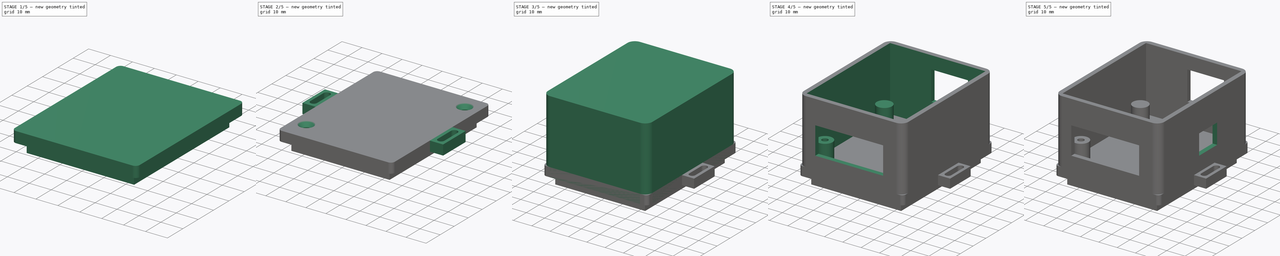
[diagram: build sequence overview — one tinted view per stage of 5, left to right]
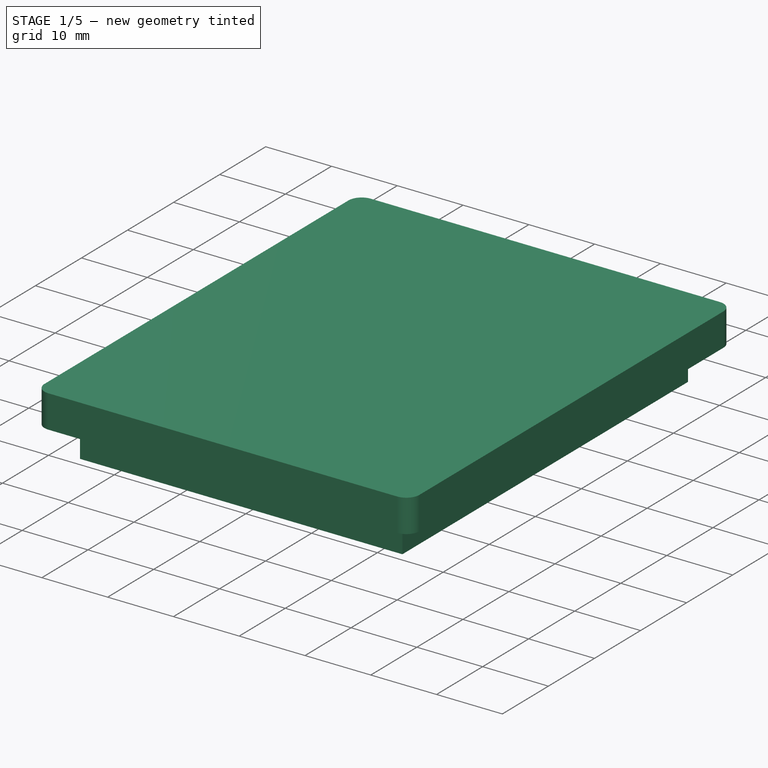
[diagram: stage 1 of 5 — iso view after this stage's code; geometry added in this stage tinted green]
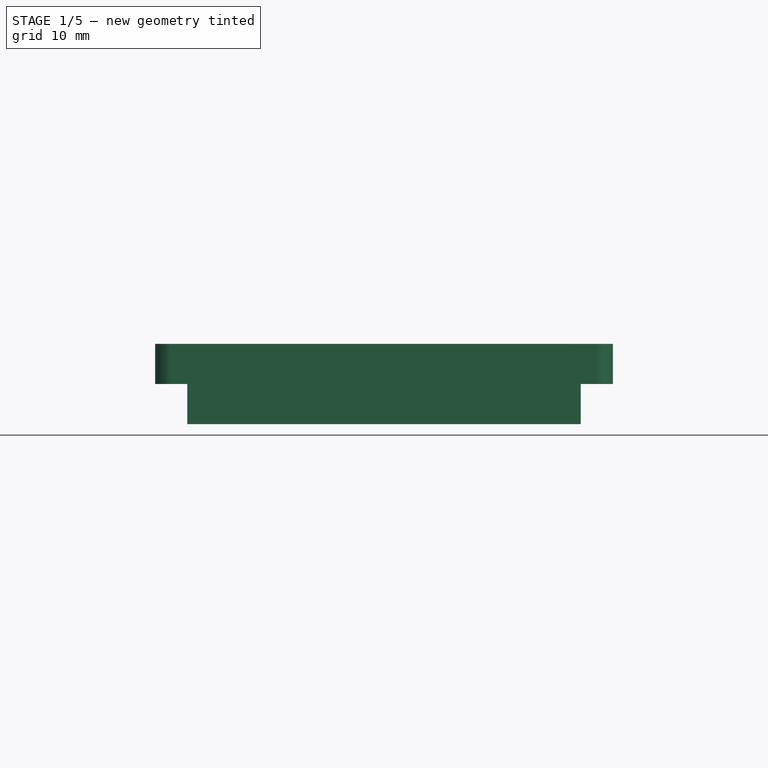
[diagram: stage 1 of 5 — front view after this stage's code; geometry added in this stage tinted green]
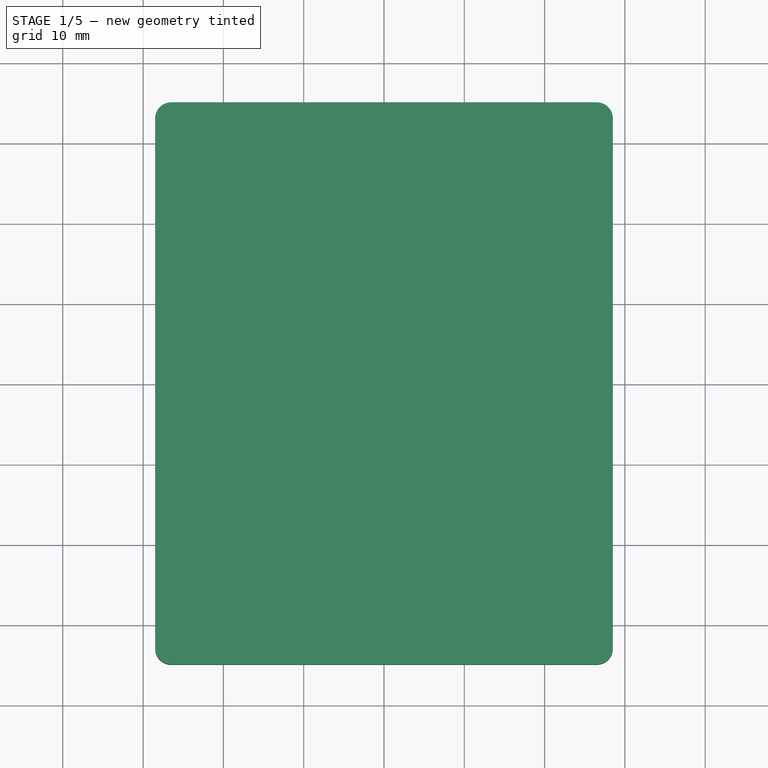
[diagram: stage 1 of 5 — top view after this stage's code; geometry added in this stage tinted green]
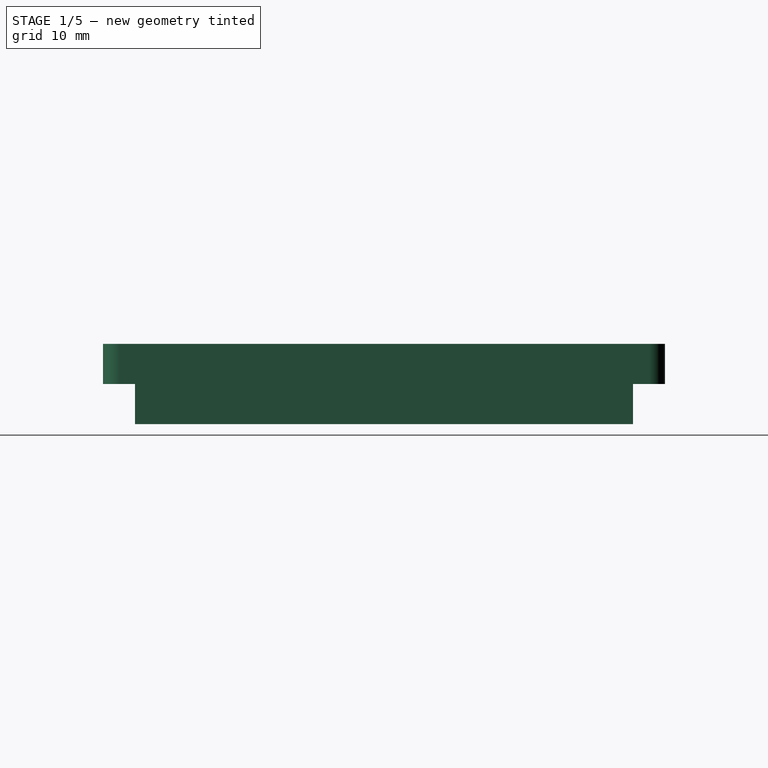
[diagram: stage 1 of 5 — right view after this stage's code; geometry added in this stage tinted green]
FCSTD DOCUMENT  (FreeCAD 0.19R24291 (Git))
Label: Carcasa
License: All rights reserved
LicenseURL: http://en.wikipedia.org/wiki/All_rights_reserved
objects: Sketcher::SketchObject×11, PartDesign::Pocket×7, PartDesign::Pad×5, PartDesign::Chamfer×3, PartDesign::Fillet×2, PartDesign::Body×2, Spreadsheet::Sheet×1, App::Part×1
note: 47 computed .brp shape members not serialized (recipe doc carries the construction recipe); baked Part::Feature solids carry a one-line shape summary decoded from their .brp

FEATURE [Sketcher::SketchObject] Sketch003  label="Base de la tapa"
  FullyConstrained = true
  MapMode = 5
  Support = -> [XY_Plane002]
  expr: Constraints[7] = Spreadsheet.caja_largo_exterior
  expr: Constraints[6] = Spreadsheet.caja_ancho_exterior
  sketch-geometry (4):
    g0: LineSegment StartX=-28.5 StartY=35 StartZ=0 EndX=28.5 EndY=35 EndZ=0
    g1: LineSegment StartX=28.5 StartY=35 StartZ=0 EndX=28.5 EndY=-35 EndZ=0
    g2: LineSegment StartX=28.5 StartY=-35 StartZ=0 EndX=-28.5 EndY=-35 EndZ=0
    g3: LineSegment StartX=-28.5 StartY=-35 StartZ=0 EndX=-28.5 EndY=35 EndZ=0
  constraints (10):
    c: Coincident(g0,g1)
    c: Coincident(g1,g2)
    c: Coincident(g2,g3)
    c: Coincident(g3,g0)
    c: Horizontal(g2)
    c: Vertical(g1)
    c: DistanceX(g0,g0) = 57
    c: DistanceY(g1,g1) = 70
    c: Symmetric(g0,g0,g-2)
    c: Symmetric(g0,g2,g-1)
FEATURE [PartDesign::Pad] Pad002
  Direction = (1,1,1)
  Length = 5
  Length2 = 100
  Profile = -> Sketch003
  Type = 0
  expr: Length = Spreadsheet.tapa_alto
FEATURE [PartDesign::Fillet] Fillet001
  Base = -> Pad002 [Edge2,Edge5,Edge8,Edge1]
  BaseFeature = -> Pad002
  Radius = 2
  SupportTransform = false
  expr: Radius = Spreadsheet.caja_redondeado_externo / 2
FEATURE [Sketcher::SketchObject] Sketch005
  FullyConstrained = true
  MapMode = 5
  Support = -> [XY_Plane002]
  expr: Constraints[8] = Spreadsheet.caja_ancho_interior - 3
  expr: Constraints[9] = Spreadsheet.caja_largo_interior - 3
  sketch-geometry (4):
    g0: LineSegment StartX=-24.5 StartY=31 StartZ=0 EndX=24.5 EndY=31 EndZ=0
    g1: LineSegment StartX=24.5 StartY=31 StartZ=0 EndX=24.5 EndY=-31 EndZ=0
    g2: LineSegment StartX=24.5 StartY=-31 StartZ=0 EndX=-24.5 EndY=-31 EndZ=0
    g3: LineSegment StartX=-24.5 StartY=-31 StartZ=0 EndX=-24.5 EndY=31 EndZ=0
  constraints (10):
    c: Coincident(g0,g1)
    c: Coincident(g1,g2)
    c: Coincident(g2,g3)
    c: Coincident(g3,g0)
    c: Horizontal(g2)
    c: Vertical(g3)
    c: Symmetric(g0,g0,g-2)
    c: Symmetric(g1,g0,g-1)
    c: DistanceX(g0,g0) = 49
    c: DistanceY(g1,g1) = 62
FEATURE [PartDesign::Pad] Pad004  label="Base de la tapa interna"
  BaseFeature = -> Fillet001
  Direction = (1,1,1)
  Length = 5
  Length2 = 100
  Profile = -> Sketch005
  Reversed = true
  Type = 0
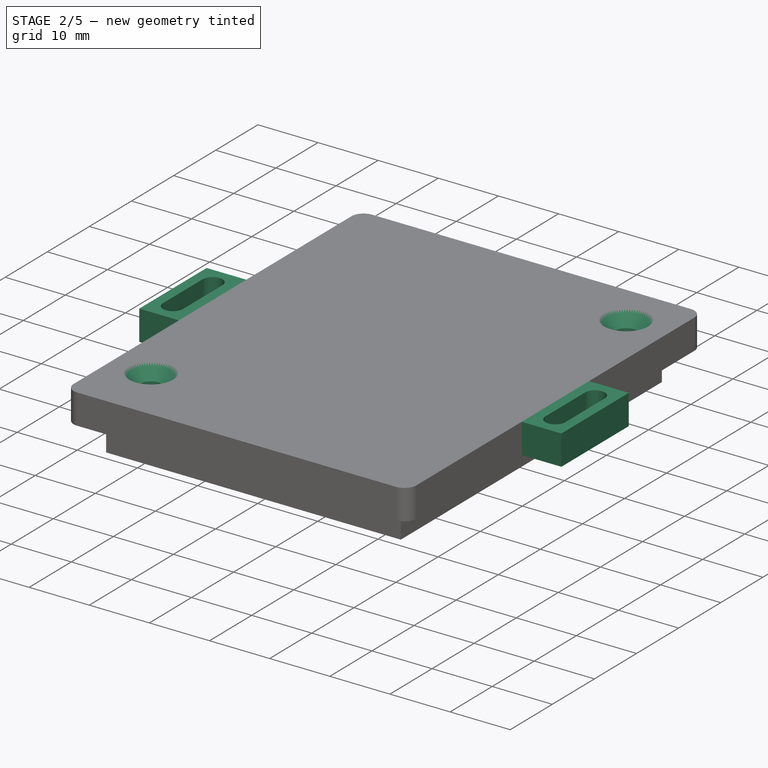
[diagram: stage 2 of 5 — iso view after this stage's code; geometry added in this stage tinted green]
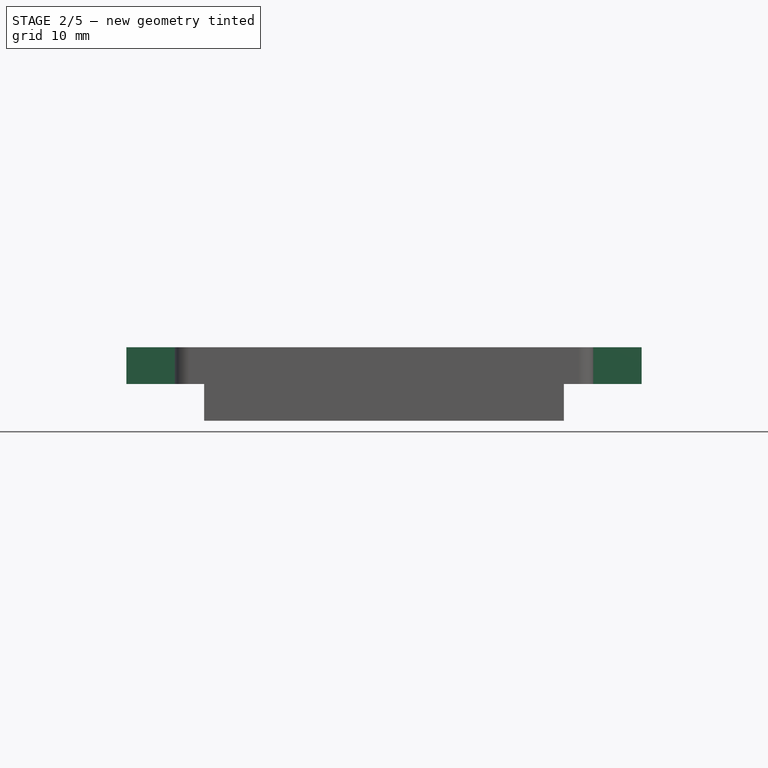
[diagram: stage 2 of 5 — front view after this stage's code; geometry added in this stage tinted green]
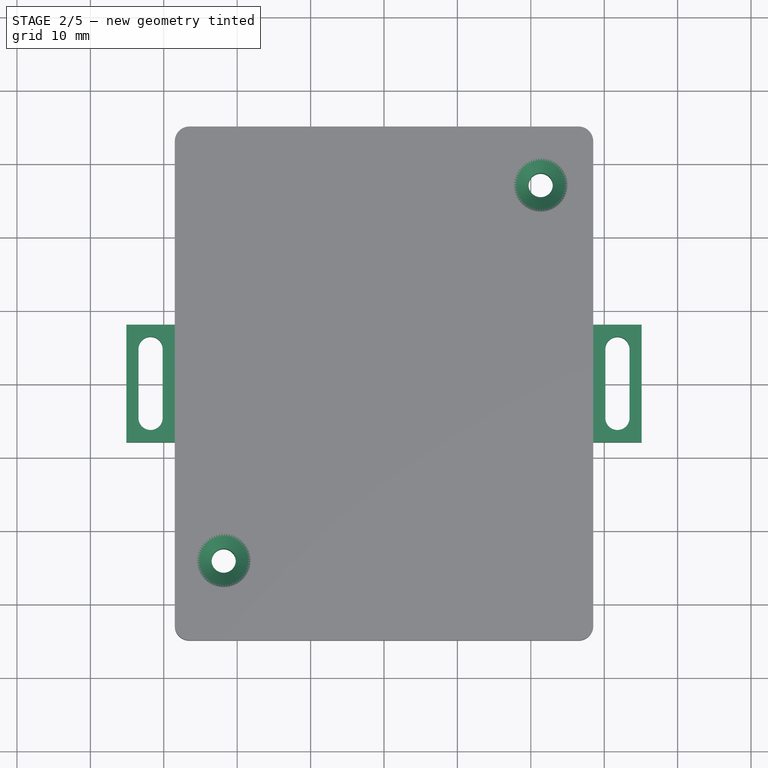
[diagram: stage 2 of 5 — top view after this stage's code; geometry added in this stage tinted green]
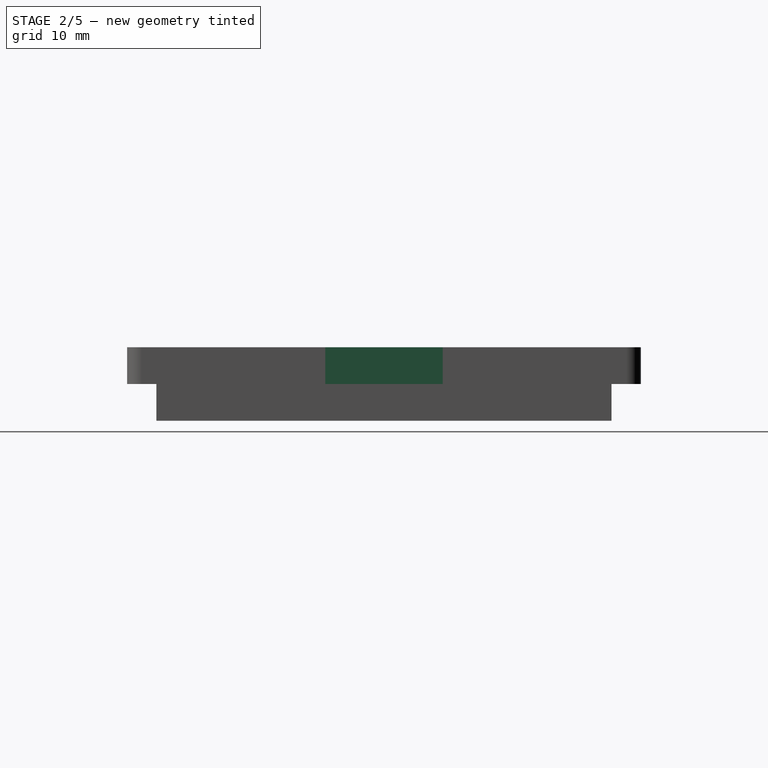
[diagram: stage 2 of 5 — right view after this stage's code; geometry added in this stage tinted green]
FEATURE [Sketcher::SketchObject] Sketch006
  AttachmentOffset = pos=(0,0,5) rot=(0,0,1;0rad)
  FullyConstrained = true
  MapMode = 5
  Placement = pos=(0,0,5) rot=(0,0,1;0rad)
  Support = -> [XY_Plane002]
  expr: Constraints[1] = Spreadsheet.caja_tornillo_radio
  expr: Constraints[2] = Spreadsheet.placa_ancho / 2 - 3.56
  expr: Constraints[5] = Spreadsheet.placa_largo / 2 - 4.06
  expr: Constraints[4] = Spreadsheet.placa_ancho / 2 - 4.06
  expr: Constraints[3] = Spreadsheet.placa_largo / 2 - 7
  sketch-geometry (2):
    g0: Circle CenterX=21.34 CenterY=27.055 CenterZ=0 NormalX=0 NormalY=0 NormalZ=1 AngleXU=0 Radius=1.65
    g1: Circle CenterX=-21.84 CenterY=-24.115 CenterZ=0 NormalX=0 NormalY=0 NormalZ=1 AngleXU=0 Radius=1.65
  constraints (6):
    c: Equal(g0,g1)
    c: Radius(g0) = 1.65
    c: DistanceX(g1,g-1) = 21.84
    c: DistanceY(g1,g-1) = 24.115
    c: DistanceX(g-1,g0) = 21.34
    c: DistanceY(g-1,g0) = 27.055
FEATURE [PartDesign::Pocket] Pocket001  label="Tornillos001"
  BaseFeature = -> Pad004
  Length = 5
  Length2 = 100
  Profile = -> Sketch006
  Type = 1
FEATURE [PartDesign::Chamfer] Chamfer
  Angle = 45
  Base = -> Pocket001 [Edge25,Edge26]
  BaseFeature = -> Pocket001
  ChamferType = 0
  FlipDirection = false
  Size = 2
  Size2 = 1
  SupportTransform = false
FEATURE [PartDesign::Body] Body  label="Base de la Carcasa"
  Group = -> [Sketch,Pad,Fillet,Sketch001,Pocket,Sketch004,Pad003,Sketch007,Pocket002,Sketch008,Pocket003,Sketch009,Pocket004,Pocket005,Sketch010,Pocket006]
  Origin = -> Origin
  Tip = -> Pocket006
FEATURE [Sketcher::SketchObject] Sketch011
  FullyConstrained = true
  MapMode = 5
  Support = -> [XY_Plane002]
  expr: Constraints[30] = 2 * Spreadsheet.caja_tornillo_radio
  expr: Constraints[29] = Spreadsheet.caja_tornillo_radio
  expr: Constraints[27] = Spreadsheet.caja_tornillo_radio
  expr: Constraints[20] = Spreadsheet.caja_tornillo_radio * 4
  expr: Constraints[19] = Spreadsheet.caja_ancho_exterior / 2
  sketch-geometry (16):
    g0: LineSegment StartX=28.5 StartY=8 StartZ=0 EndX=35.1 EndY=8 EndZ=0
    g1: LineSegment StartX=35.1 StartY=8 StartZ=0 EndX=35.1 EndY=-8 EndZ=0
    g2: LineSegment StartX=35.1 StartY=-8 StartZ=0 EndX=28.5 EndY=-8 EndZ=0
    g3: LineSegment StartX=28.5 StartY=-8 StartZ=0 EndX=28.5 EndY=8 EndZ=0
    g4: LineSegment StartX=-28.5 StartY=8 StartZ=0 EndX=-35.1 EndY=8 EndZ=0
    g5: LineSegment StartX=-35.1 StartY=8 StartZ=0 EndX=-35.1 EndY=-8 EndZ=0
    g6: LineSegment StartX=-35.1 StartY=-8 StartZ=0 EndX=-28.5 EndY=-8 EndZ=0
    g7: LineSegment StartX=-28.5 StartY=-8 StartZ=0 EndX=-28.5 EndY=8 EndZ=0
    g8: ArcOfCircle CenterX=31.8 CenterY=4.7 CenterZ=0 NormalX=0 NormalY=0 NormalZ=1 AngleXU=0 Radius=1.65 StartAngle=0 EndAngle=3.14159
    g9: ArcOfCircle CenterX=31.8 CenterY=-4.7 CenterZ=0 NormalX=0 NormalY=0 NormalZ=1 AngleXU=0 Radius=1.65 StartAngle=3.14159 EndAngle=6.28319
    g10: LineSegment StartX=30.15 StartY=4.7 StartZ=0 EndX=30.15 EndY=-4.7 EndZ=0
    g11: LineSegment StartX=33.45 StartY=4.7 StartZ=0 EndX=33.45 EndY=-4.7 EndZ=0
    g12: ArcOfCircle CenterX=-31.8 CenterY=4.7 CenterZ=0 NormalX=0 NormalY=0 NormalZ=1 AngleXU=0 Radius=1.65 StartAngle=0 EndAngle=3.14159
    g13: ArcOfCircle CenterX=-31.8 CenterY=-4.7 CenterZ=0 NormalX=0 NormalY=0 NormalZ=1 AngleXU=0 Radius=1.65 StartAngle=3.14159 EndAngle=6.28319
    g14: LineSegment StartX=-33.45 StartY=4.7 StartZ=0 EndX=-33.45 EndY=-4.7 EndZ=0
    g15: LineSegment StartX=-30.15 StartY=4.7 StartZ=0 EndX=-30.15 EndY=-4.7 EndZ=0
  constraints (40):
    c: Coincident(g0,g1)
    c: Coincident(g1,g2)
    c: Coincident(g2,g3)
    c: Coincident(g3,g0)
    c: Horizontal(g0)
    c: Horizontal(g2)
    c: Vertical(g1)
    c: Coincident(g4,g5)
    c: Coincident(g5,g6)
    c: Coincident(g6,g7)
    c: Coincident(g7,g4)
    c: Horizontal(g4)
    c: Horizontal(g6)
    c: Vertical(g5)
    c: Vertical(g7)
    c: Equal(g5,g1)
    c: Equal(g0,g4)
    c: Symmetric(g2,g0,g-1)
    c: Symmetric(g4,g0,g-2)
    c: DistanceX(g4,g-1) = 28.5
    c: DistanceX(g4,g4) = 6.6
    c: DistanceY(g5,g5) = 16
    c: Tangent(g8,g11) = 1.5708
    c: Tangent(g8,g10) = -1.5708
    c: Tangent(g10,g9) = -1.5708
    c: Tangent(g11,g9) = 1.5708
    c: Vertical(g10)
    c: DistanceX(g8,g8) = 1.65
    c: Symmetric(g9,g8,g-1)
    c: DistanceX(g0,g8) = 1.65
    c: DistanceY(g8,g0) = 3.3
    c: Tangent(g12,g15) = 1.5708
    c: Tangent(g12,g14) = -1.5708
    c: Tangent(g14,g13) = -1.5708
    c: Tangent(g15,g13) = 1.5708
    c: Vertical(g14)
    c: Equal(g12,g13)
    c: Equal(g15,g10)
    c: Equal(g13,g9)
    c: Symmetric(g13,g9,g-2)
FEATURE [PartDesign::Pad] Pad005
  BaseFeature = -> Chamfer
  Direction = (1,1,1)
  Length = 5
  Length2 = 100
  Profile = -> Sketch011
  Type = 0
FEATURE [PartDesign::Chamfer] Chamfer001
  Angle = 45
  Base = -> Pad005 [Edge74,Edge72,Edge70,Edge75]
  BaseFeature = -> Pad005
  ChamferType = 0
  FlipDirection = false
  Size = 1
  Size2 = 1
  SupportTransform = false
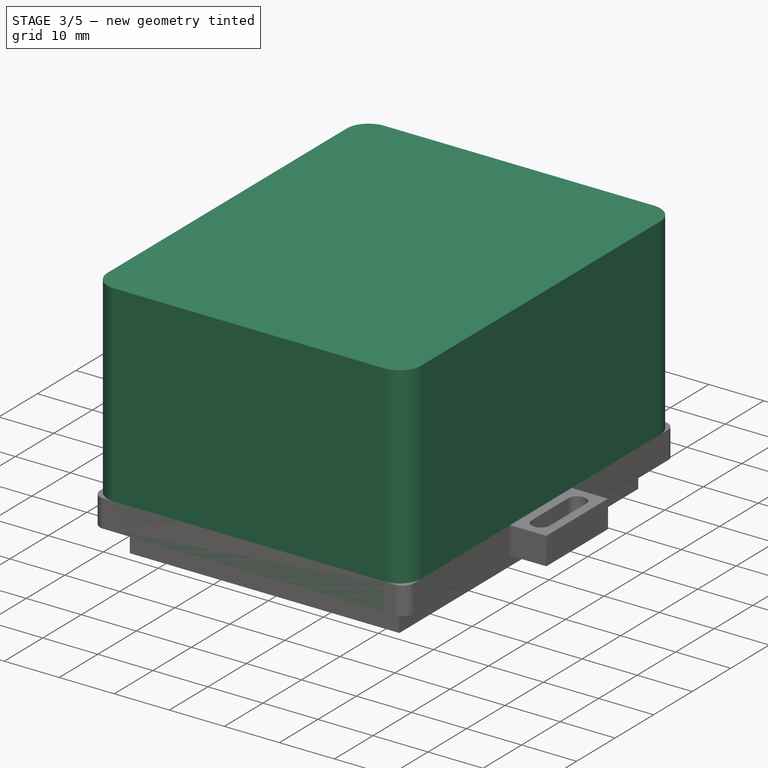
[diagram: stage 3 of 5 — iso view after this stage's code; geometry added in this stage tinted green]
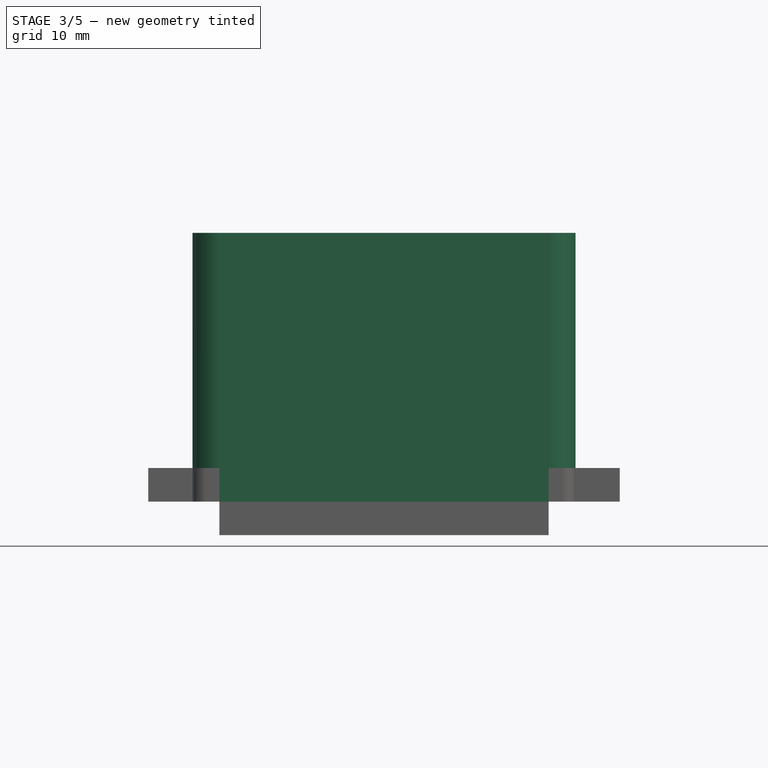
[diagram: stage 3 of 5 — front view after this stage's code; geometry added in this stage tinted green]
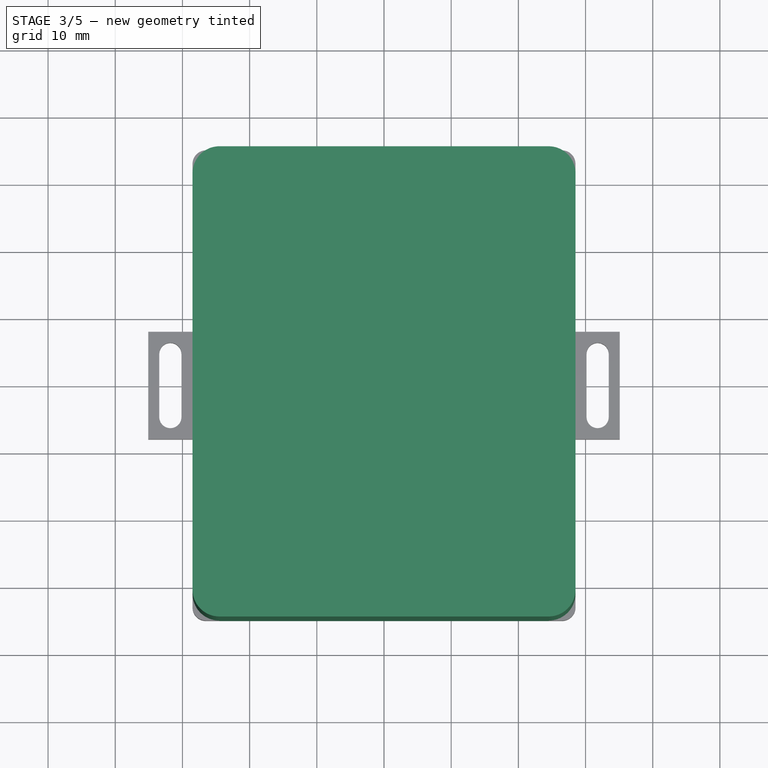
[diagram: stage 3 of 5 — top view after this stage's code; geometry added in this stage tinted green]
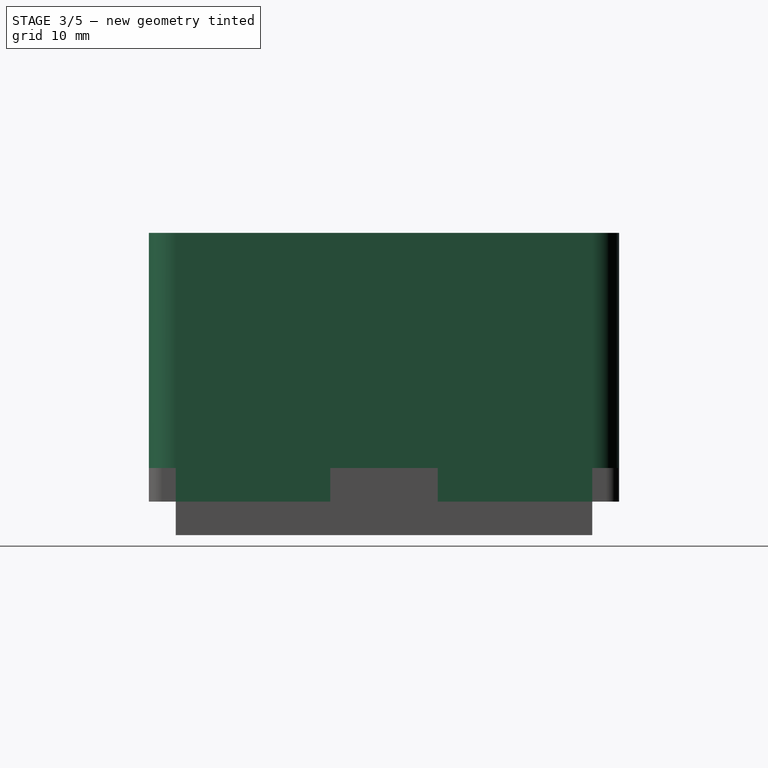
[diagram: stage 3 of 5 — right view after this stage's code; geometry added in this stage tinted green]
FEATURE [Sketcher::SketchObject] Sketch
  FullyConstrained = true
  MapMode = 5
  Support = -> [XY_Plane]
  expr: Constraints[9] = Spreadsheet.caja_largo_exterior
  expr: Constraints[8] = Spreadsheet.caja_ancho_exterior
  sketch-geometry (4):
    g0: LineSegment StartX=-28.5 StartY=35 StartZ=0 EndX=28.5 EndY=35 EndZ=0
    g1: LineSegment StartX=28.5 StartY=35 StartZ=0 EndX=28.5 EndY=-35 EndZ=0
    g2: LineSegment StartX=28.5 StartY=-35 StartZ=0 EndX=-28.5 EndY=-35 EndZ=0
    g3: LineSegment StartX=-28.5 StartY=-35 StartZ=0 EndX=-28.5 EndY=35 EndZ=0
  constraints (10):
    c: Coincident(g0,g1)
    c: Coincident(g1,g2)
    c: Coincident(g2,g3)
    c: Coincident(g3,g0)
    c: Horizontal(g2)
    c: Vertical(g3)
    c: Symmetric(g0,g0,g-2)
    c: Symmetric(g0,g1,g-1)
    c: DistanceX(g0,g0) = 57
    c: DistanceY(g1,g1) = 70
FEATURE [PartDesign::Pad] Pad  label="Base"
  Direction = (1,1,1)
  Length = 40
  Length2 = 100
  Profile = -> Sketch
  Type = 0
  expr: Length = Spreadsheet.caja_alto_exterior
FEATURE [Spreadsheet::Sheet] Spreadsheet
  cells = A2=caja_alto_exterior; B2(caja_alto_exterior)==B5 + B8; A3=caja_ancho_exterior; B3(caja_ancho_exterior)==B6 + 5; A4=caja_largo_exterior; B4(caja_largo_exterior)==B7 + 5; A5=caja_alto_interior; B5(caja_alto_interior)=35; A6=caja_ancho_interior; B6(caja_ancho_interior)=52; A7=caja_largo_interior; B7(caja_largo_interior)=65; A8=caja_grosor_fondo; B8(caja_grosor_fondo)=5; A9=caja_redondeado_externo; B9(caja_redondeado_externo)=4; A10=placa_ancho; B10(placa_ancho)=50.8; A11=placa_largo; B11(placa_largo)=62.23; A13=caja_lug_alto; B13(caja_lug_alto)==caja_grosor_fondo + 10; A14=caja_lug_radio; B14(caja_lug_radio)=10; A15=caja_tornillo_radio; B15(caja_tornillo_radio)=1.65; A18=tapa_alto; B18(tapa_alto)=5
FEATURE [PartDesign::Fillet] Fillet
  Base = -> Pad [Edge1,Edge2,Edge8,Edge5]
  BaseFeature = -> Pad
  Radius = 4
  SupportTransform = false
  expr: Radius = Spreadsheet.caja_redondeado_externo
FEATURE [PartDesign::Chamfer] Chamfer002
  Angle = 45
  Base = -> Chamfer001 [Edge88,Edge87,Edge86,Edge85]
  BaseFeature = -> Chamfer001
  ChamferType = 0
  FlipDirection = false
  Size = 1
  Size2 = 1
  SupportTransform = false
FEATURE [PartDesign::Body] Body001  label="Tapa de la Carcasa"
  Group = -> [Sketch003,Pad002,Fillet001,Sketch005,Pad004,Sketch006,Pocket001,Chamfer,Sketch011,Pad005,Chamfer001,Chamfer002]
  Origin = -> Origin002
  Placement = pos=(0,0,60) rot=(0,0,1;0rad)
  Tip = -> Chamfer002
  expr: .Placement.Base.z = Spreadsheet.caja_alto_exterior + 20
FEATURE [App::Part] Part  label="Carcasa"
  Group = -> [Body,Body001]
  Origin = -> Origin001
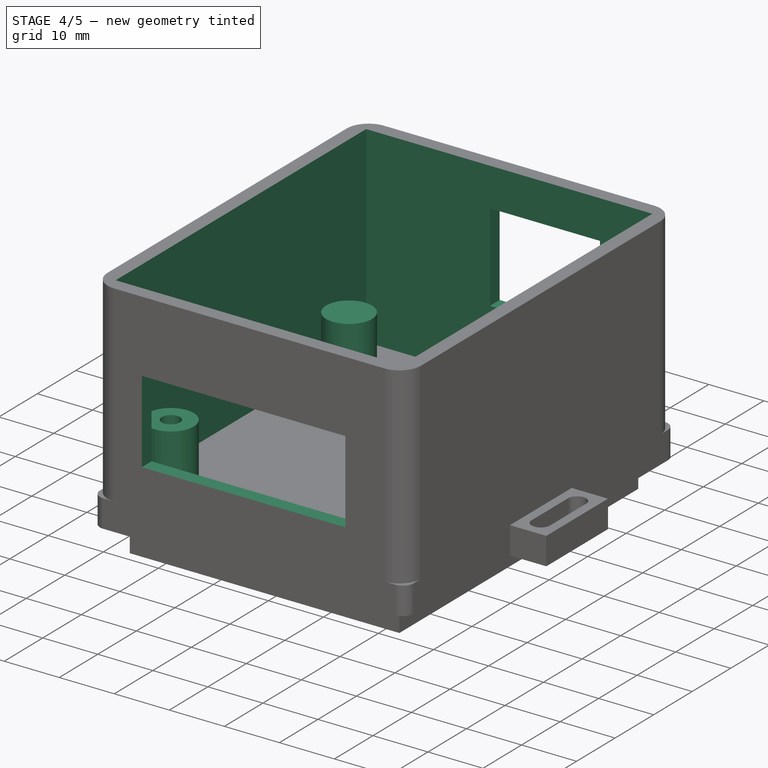
[diagram: stage 4 of 5 — iso view after this stage's code; geometry added in this stage tinted green]
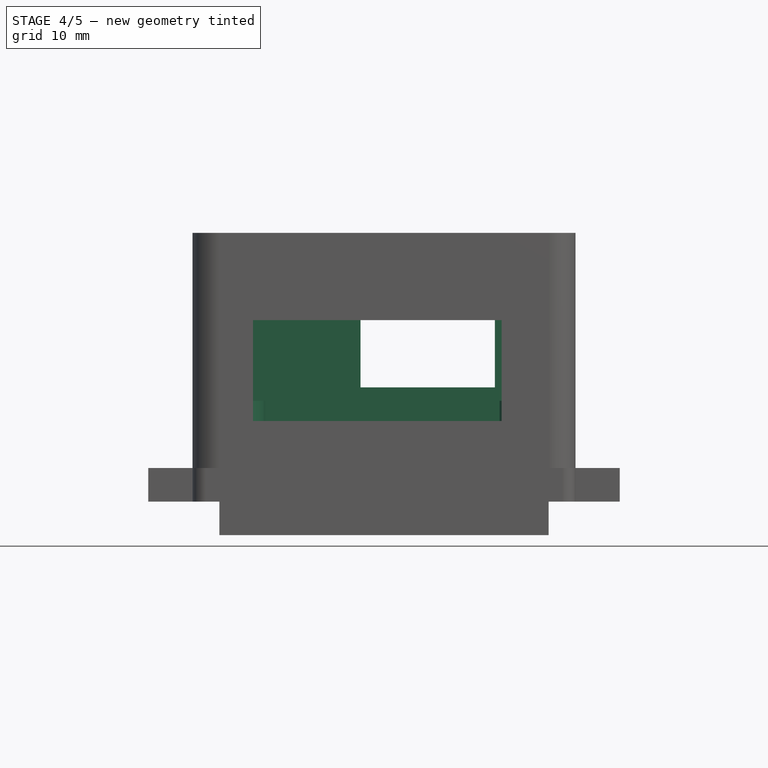
[diagram: stage 4 of 5 — front view after this stage's code; geometry added in this stage tinted green]
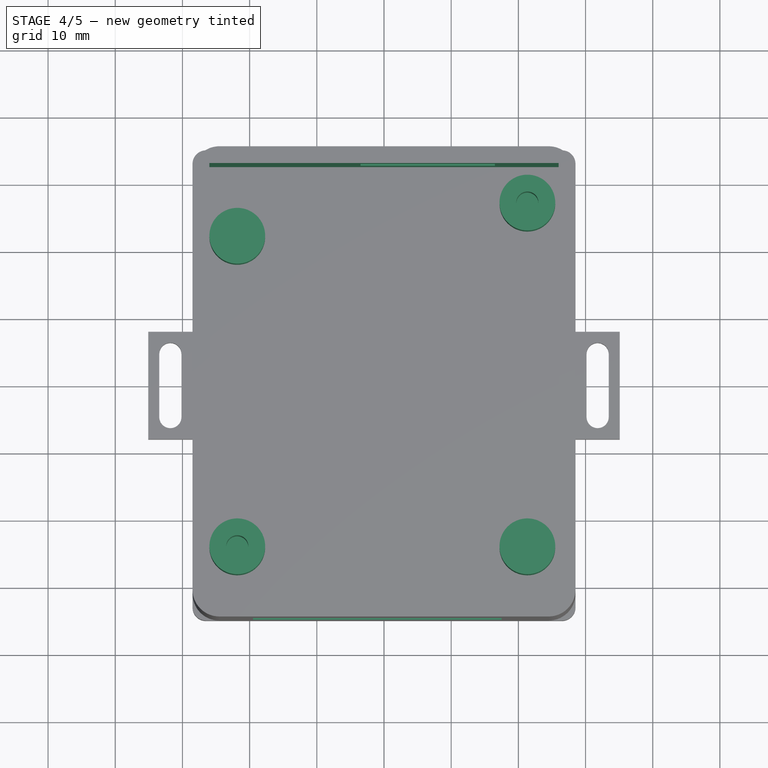
[diagram: stage 4 of 5 — top view after this stage's code; geometry added in this stage tinted green]
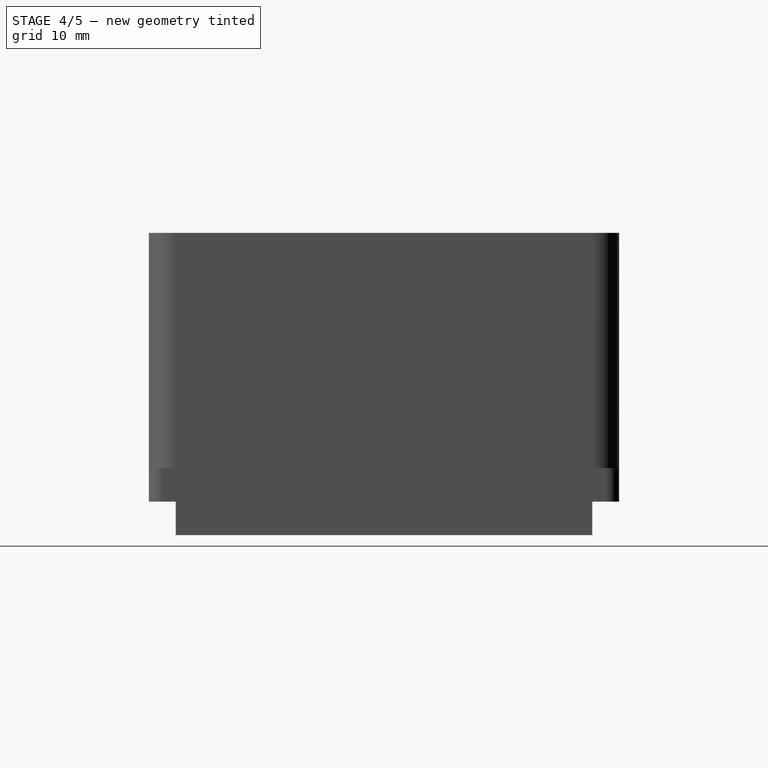
[diagram: stage 4 of 5 — right view after this stage's code; geometry added in this stage tinted green]
FEATURE [Sketcher::SketchObject] Sketch001
  AttachmentOffset = pos=(0,0,5) rot=(0,0,1;0rad)
  FullyConstrained = true
  MapMode = 5
  Placement = pos=(0,0,5) rot=(0,0,1;0rad)
  Support = -> [XY_Plane]
  expr: .AttachmentOffset.Base.z = Spreadsheet.caja_grosor_fondo
  expr: Constraints[9] = Spreadsheet.caja_largo_interior
  expr: Constraints[8] = Spreadsheet.caja_ancho_interior
  sketch-geometry (4):
    g0: LineSegment StartX=-26 StartY=32.5 StartZ=0 EndX=26 EndY=32.5 EndZ=0
    g1: LineSegment StartX=26 StartY=32.5 StartZ=0 EndX=26 EndY=-32.5 EndZ=0
    g2: LineSegment StartX=26 StartY=-32.5 StartZ=0 EndX=-26 EndY=-32.5 EndZ=0
    g3: LineSegment StartX=-26 StartY=-32.5 StartZ=0 EndX=-26 EndY=32.5 EndZ=0
  constraints (10):
    c: Coincident(g0,g1)
    c: Coincident(g1,g2)
    c: Coincident(g2,g3)
    c: Coincident(g3,g0)
    c: Horizontal(g2)
    c: Vertical(g3)
    c: Symmetric(g0,g0,g-2)
    c: Symmetric(g0,g1,g-1)
    c: DistanceX(g0,g0) = 52
    c: DistanceY(g1,g1) = 65
FEATURE [PartDesign::Pocket] Pocket  label="Vaciado de Base"
  BaseFeature = -> Fillet
  Length = 35
  Length2 = 100
  Profile = -> Sketch001
  Reversed = true
  Type = 0
  expr: Offset = 0
  expr: Length = Spreadsheet.caja_alto_interior
FEATURE [Sketcher::SketchObject] Sketch004
  FullyConstrained = true
  MapMode = 5
  Support = -> [XY_Plane]
  expr: Constraints[13] = Spreadsheet.placa_ancho / 2 - 3.56
  expr: Constraints[11] = Spreadsheet.placa_ancho / 2 - 4.06
  expr: Constraints[1] = Spreadsheet.placa_ancho / 2 - 3.56
  expr: Constraints[10] = Spreadsheet.placa_largo / 2 - 7
  expr: Constraints[2] = Spreadsheet.placa_largo / 2 - 7
  expr: Constraints[5] = Spreadsheet.caja_tornillo_radio
  expr: Constraints[3] = Spreadsheet.placa_ancho / 2 - 4.06
  expr: Constraints[4] = Spreadsheet.placa_largo / 2 - 4.06
  expr: Constraints[14] = Spreadsheet.placa_largo / 2 - 9
  expr: Constraints[9] = Spreadsheet.caja_tornillo_radio + 2.5
  sketch-geometry (6):
    g0: Circle CenterX=-21.84 CenterY=-24.115 CenterZ=0 NormalX=0 NormalY=0 NormalZ=1 AngleXU=0 Radius=1.65
    g1: Circle CenterX=21.34 CenterY=27.055 CenterZ=0 NormalX=0 NormalY=0 NormalZ=1 AngleXU=0 Radius=1.65
    g2: Circle CenterX=-21.84 CenterY=-24.115 CenterZ=0 NormalX=0 NormalY=0 NormalZ=1 AngleXU=0 Radius=4.15
    g3: Circle CenterX=21.34 CenterY=27.055 CenterZ=0 NormalX=0 NormalY=0 NormalZ=1 AngleXU=0 Radius=4.15
    g4: Circle CenterX=21.34 CenterY=-24.115 CenterZ=0 NormalX=0 NormalY=0 NormalZ=1 AngleXU=0 Radius=4.15
    g5: Circle CenterX=-21.84 CenterY=22.115 CenterZ=0 NormalX=0 NormalY=0 NormalZ=1 AngleXU=0 Radius=4.15
  constraints (16):
    c: Equal(g1,g0)
    c: DistanceX(g0,g-1) = 21.84
    c: DistanceY(g0,g-1) = 24.115
    c: DistanceX(g-1,g1) = 21.34
    c: DistanceY(g-1,g1) = 27.055
    c: Radius(g0) = 1.65
    c: Coincident(g0,g2)
    c: Coincident(g3,g1)
    c: Equal(g3,g2)
    c: Radius(g3) = 4.15
    c: DistanceY(g4,g-1) = 24.115
    c: DistanceX(g-1,g4) = 21.34
    c: Equal(g5,g2)
    c: DistanceX(g5,g-1) = 21.84
    c: DistanceY(g-1,g5) = 22.115
    c: Equal(g2,g4)
FEATURE [PartDesign::Pad] Pad003  label="Tornillos"
  BaseFeature = -> Pocket
  Direction = (1,1,1)
  Length = 15
  Length2 = 100
  Profile = -> Sketch004
  Type = 0
  expr: Length = Spreadsheet.caja_lug_alto
FEATURE [Sketcher::SketchObject] Sketch007
  ExternalGeometry = -> [Pad003]
  FullyConstrained = true
  MapMode = 5
  Placement = pos=(0,-35,0) rot=(1,0,0;1.5708rad)
  Support = -> [Pad003]
  expr: Constraints[9] = 15
  expr: Constraints[7] = Spreadsheet.caja_grosor_fondo + 7
  sketch-geometry (4):
    g0: LineSegment StartX=-19.5 StartY=26.9999 StartZ=0 EndX=17.5 EndY=27 EndZ=0
    g1: LineSegment StartX=17.5 StartY=27 StartZ=0 EndX=17.5 EndY=12 EndZ=0
    g2: LineSegment StartX=17.5 StartY=12 StartZ=0 EndX=-19.5 EndY=12 EndZ=0
    g3: LineSegment StartX=-19.5 StartY=12 StartZ=0 EndX=-19.5 EndY=26.9999 EndZ=0
  constraints (12):
    c: Coincident(g0,g1)
    c: Coincident(g1,g2)
    c: Coincident(g2,g3)
    c: Coincident(g3,g0)
    c: Horizontal(g2)
    c: Vertical(g1)
    c: Vertical(g3)
    c: DistanceY(g-1,g1) = 12
    c: Equal(g0,g2)
    c: DistanceY(g1,g1) = 15
    c: DistanceX(g-4,g0) = 5
    c: DistanceX(g0,g-5) = 7
FEATURE [PartDesign::Pocket] Pocket002  label="Agujero Sensores"
  BaseFeature = -> Pad003
  Length = 5
  Length2 = 100
  Profile = -> Sketch007
  Type = 0
FEATURE [Sketcher::SketchObject] Sketch008
  ExternalGeometry = -> [Pocket002]
  FullyConstrained = true
  MapMode = 5
  Placement = pos=(0,35,0) rot=(0,0.707107,0.707107;3.14159rad)
  Support = -> [Pocket002]
  expr: Constraints[10] = 8
  expr: Constraints[9] = 16
  expr: Constraints[8] = Spreadsheet.caja_lug_alto + 2
  sketch-geometry (4):
    g0: LineSegment StartX=-16.5 StartY=33 StartZ=0 EndX=3.5 EndY=33 EndZ=0
    g1: LineSegment StartX=3.5 StartY=33 StartZ=0 EndX=3.5 EndY=17 EndZ=0
    g2: LineSegment StartX=3.5 StartY=17 StartZ=0 EndX=-16.5 EndY=17 EndZ=0
    g3: LineSegment StartX=-16.5 StartY=17 StartZ=0 EndX=-16.5 EndY=33 EndZ=0
  constraints (12):
    c: Coincident(g0,g1)
    c: Coincident(g1,g2)
    c: Coincident(g2,g3)
    c: Coincident(g3,g0)
    c: Horizontal(g0)
    c: Horizontal(g2)
    c: Vertical(g1)
    c: Vertical(g3)
    c: DistanceY(g-1,g2) = 17
    c: DistanceY(g1,g1) = 16
    c: DistanceX(g-4,g0) = 8
    c: DistanceX(g0,g-3) = 21
FEATURE [PartDesign::Pocket] Pocket003  label="Agujero RJ45"
  BaseFeature = -> Pocket002
  Length = 3
  Length2 = 100
  Profile = -> Sketch008
  Type = 0
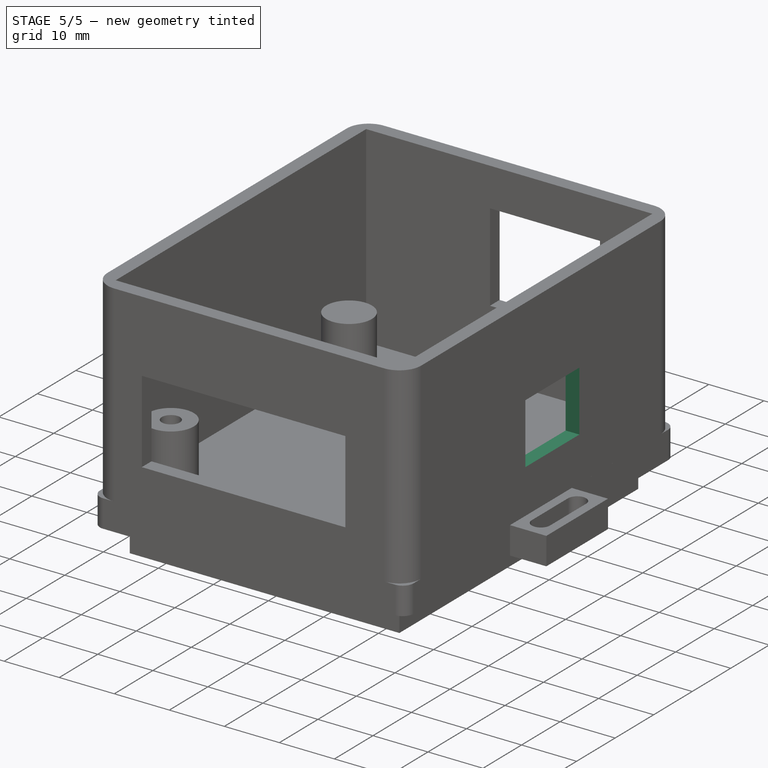
[diagram: stage 5 of 5 — iso view after this stage's code; geometry added in this stage tinted green]
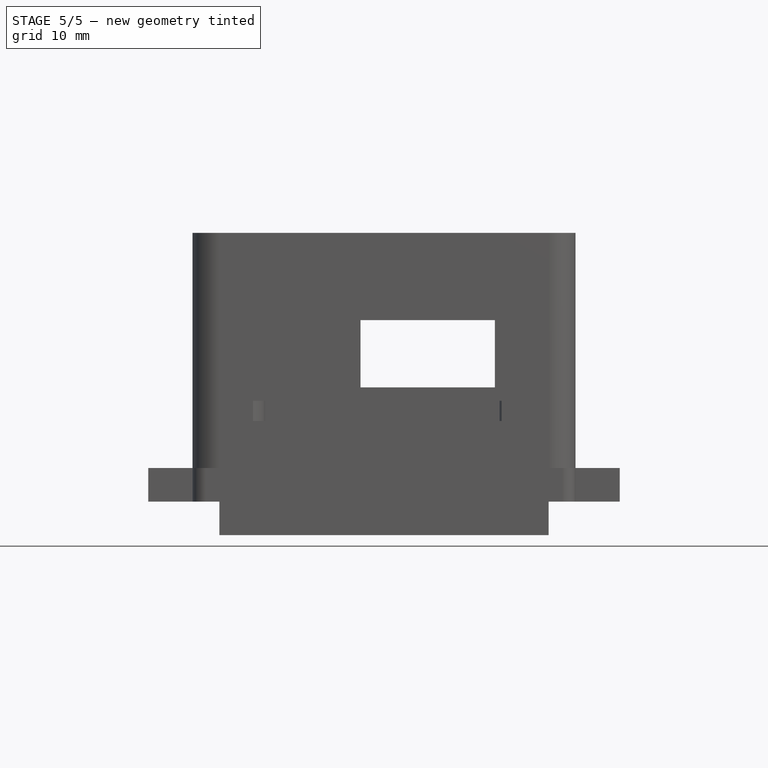
[diagram: stage 5 of 5 — front view after this stage's code; geometry added in this stage tinted green]
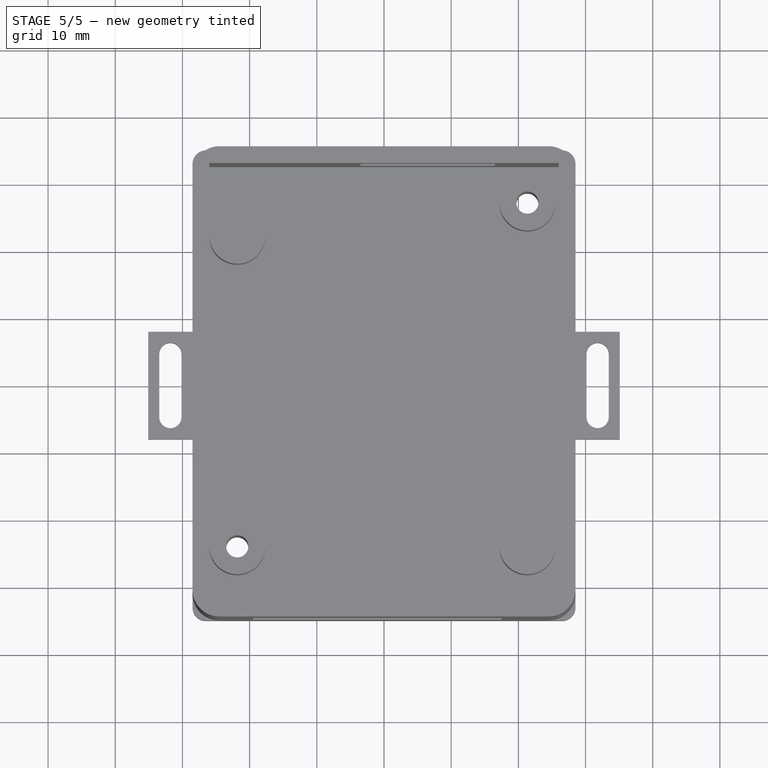
[diagram: stage 5 of 5 — top view after this stage's code; geometry added in this stage tinted green]
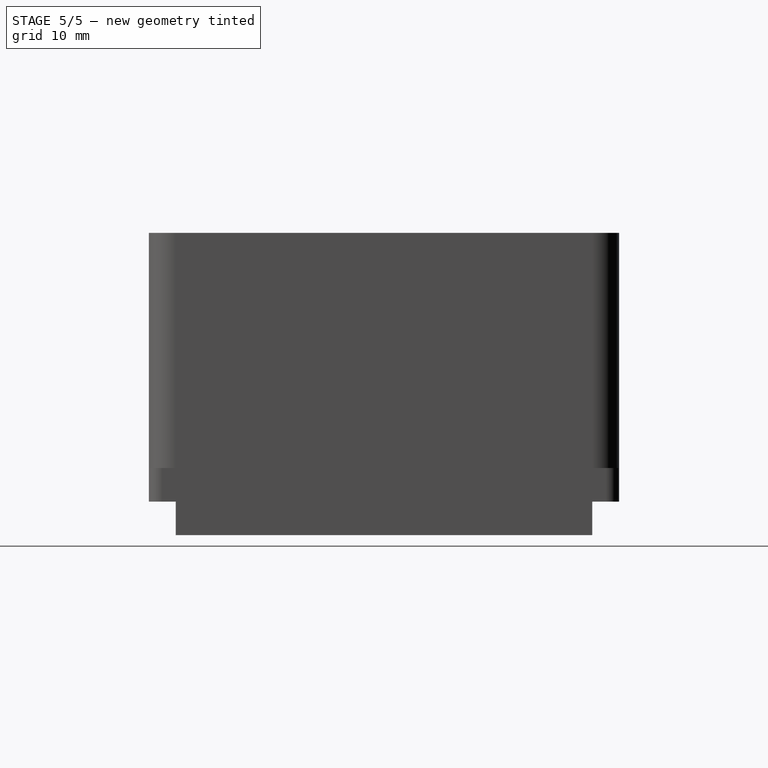
[diagram: stage 5 of 5 — right view after this stage's code; geometry added in this stage tinted green]
FEATURE [Sketcher::SketchObject] Sketch009
  ExternalGeometry = -> [Sketch001,Sketch,Sketch004]
  FullyConstrained = true
  MapMode = 5
  Support = -> [XY_Plane]
  sketch-geometry (2):
    g0: Circle CenterX=21.34 CenterY=27.055 CenterZ=0 NormalX=0 NormalY=0 NormalZ=1 AngleXU=0 Radius=1.65
    g1: Circle CenterX=-21.84 CenterY=-24.115 CenterZ=0 NormalX=0 NormalY=0 NormalZ=1 AngleXU=0 Radius=1.65
  constraints (4):
    c: Coincident(g1,g-5)
    c: Equal(g1,g-5)
    c: Coincident(g0,g-6)
    c: Equal(g0,g-6)
FEATURE [PartDesign::Pocket] Pocket004  label="Agujeros Sujecion Carcasa"
  BaseFeature = -> Pocket003
  Length = 5
  Length2 = 100
  Profile = -> Sketch009
  Reversed = true
  Type = 0
FEATURE [PartDesign::Pocket] Pocket005
  BaseFeature = -> Pocket004
  Length = 5
  Length2 = 100
  Profile = -> Sketch009
  Type = 0
FEATURE [Sketcher::SketchObject] Sketch010
  ExternalGeometry = -> [Pocket005]
  FullyConstrained = true
  MapMode = 5
  Placement = pos=(28.5,0,0) rot=(0.57735,0.57735,0.57735;2.0944rad)
  Support = -> [Pocket005]
  expr: Constraints[8] = 11
  expr: Constraints[10] = Spreadsheet.caja_lug_alto - 2
  sketch-geometry (4):
    g0: LineSegment StartX=-4 StartY=13 StartZ=0 EndX=10 EndY=13 EndZ=0
    g1: LineSegment StartX=10 StartY=13 StartZ=0 EndX=10 EndY=24 EndZ=0
    g2: LineSegment StartX=10 StartY=24 StartZ=0 EndX=-4 EndY=24 EndZ=0
    g3: LineSegment StartX=-4 StartY=24 StartZ=0 EndX=-4 EndY=13 EndZ=0
  constraints (12):
    c: Coincident(g0,g1)
    c: Coincident(g1,g2)
    c: Coincident(g2,g3)
    c: Coincident(g3,g0)
    c: Horizontal(g0)
    c: Horizontal(g2)
    c: Vertical(g1)
    c: Vertical(g3)
    c: DistanceY(g3,g3) = 11
    c: DistanceX(g0,g-3) = 21
    c: DistanceY(g-1,g0) = 13
    c: DistanceX(g-5,g2) = 27
FEATURE [PartDesign::Pocket] Pocket006  label="Agujero MicroUSB"
  BaseFeature = -> Pocket005
  Length = 3
  Length2 = 100
  Profile = -> Sketch010
  Type = 0
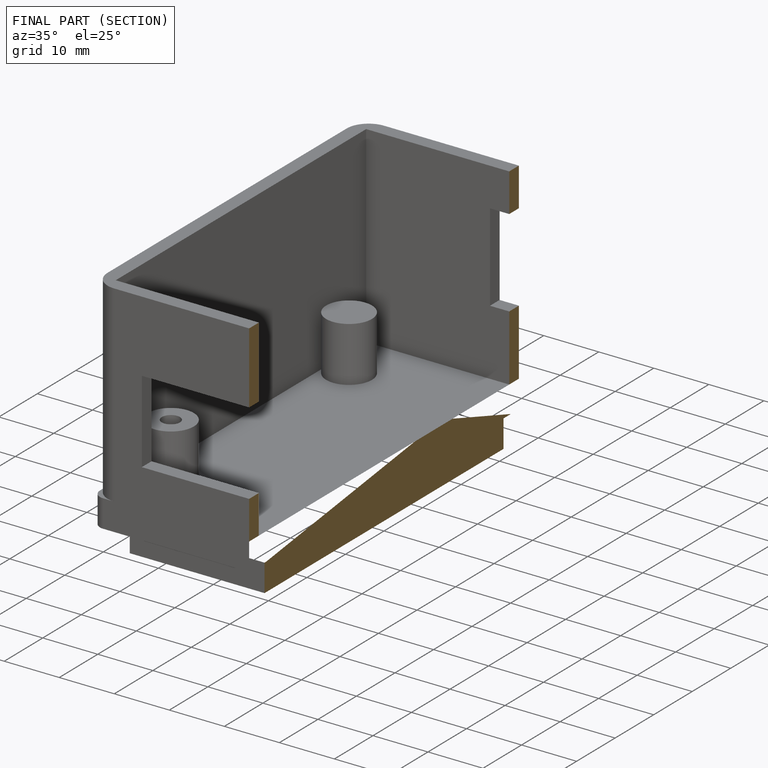
[diagram: finished part — half-section view (interior)]
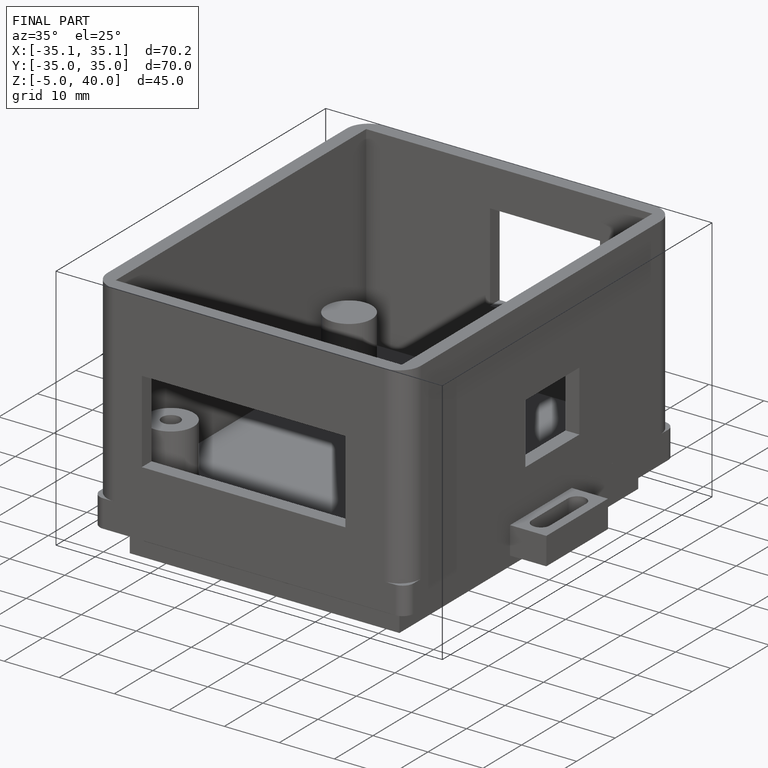
[diagram: finished part — iso view with bounding-box wireframe]
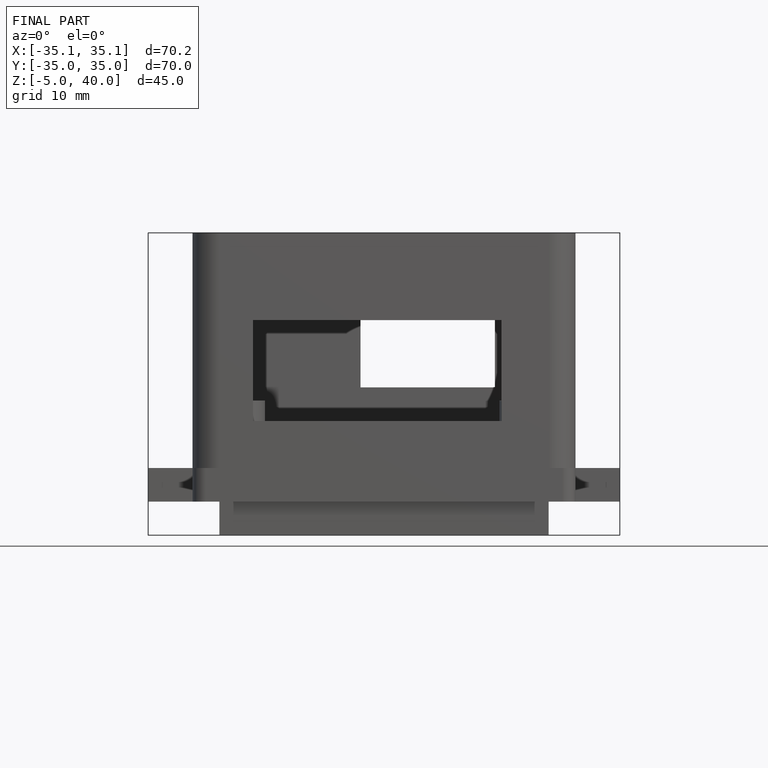
[diagram: finished part — front view with bounding-box wireframe]
